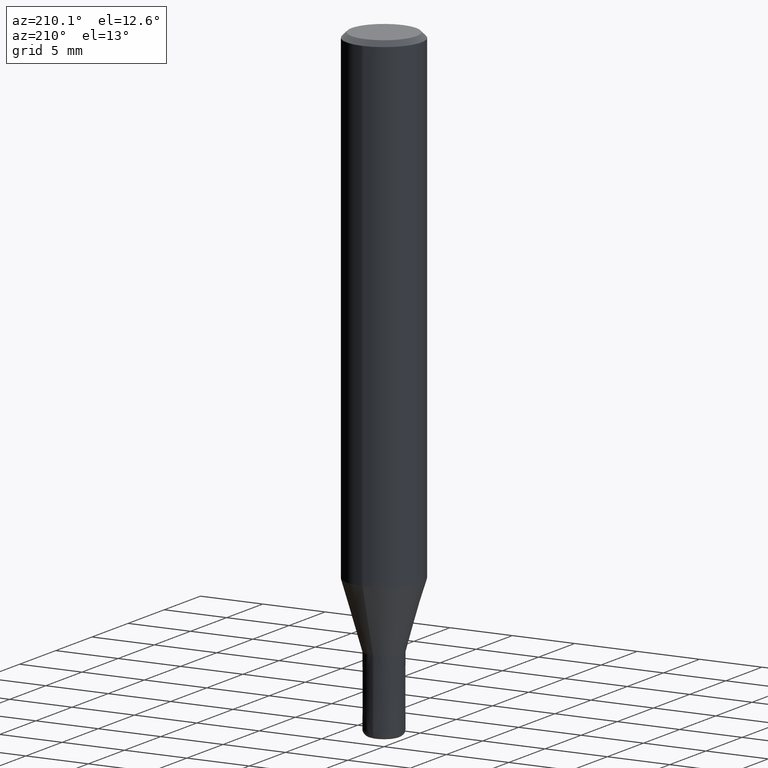
[diagram: clean part render]
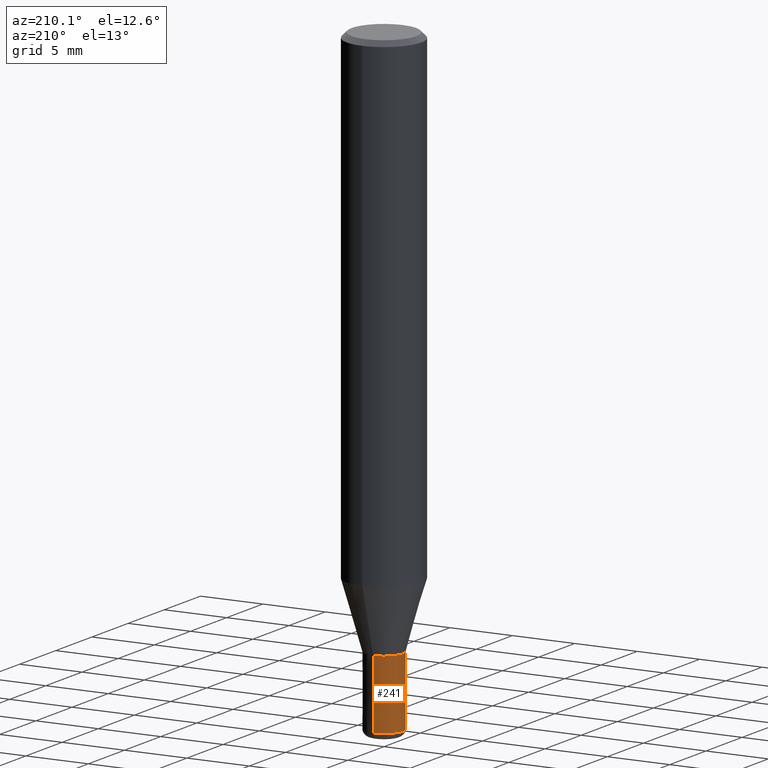
[diagram: same view with one face highlighted and labeled with its STEP entity id]
A machine part, auxiliary view. The second image highlights one B-rep face of the part: STEP entity #241.
In plain terms, the highlighted conical surface has half-angle 0.001 deg.
Its self-contained STEP definition (entity closure, byte-faithful):
#123=VERTEX_POINT('',#311);
#131=EDGE_CURVE('',#165,#123,#321,.T.);
#147=EDGE_CURVE('',#197,#151,#339,.T.);
#151=VERTEX_POINT('',#344);
#165=VERTEX_POINT('',#360);
#167=EDGE_CURVE('',#151,#123,#362,.T.);
#197=VERTEX_POINT('',#398);
#241=ADVANCED_FACE('',(#450),#451,.T.);
#271=EDGE_CURVE('',#165,#197,#482,.T.);
#311=CARTESIAN_POINT('',(0.0,1.5,-49.5));
#321=CIRCLE('',#527,1.5);
#339=CIRCLE('',#553,1.4999);
#344=CARTESIAN_POINT('',(0.0,1.4999,-44.0));
#360=CARTESIAN_POINT('',(1.83690953073357E-016,-1.5,-49.5));
#362=LINE('',#582,#583);
#398=CARTESIAN_POINT('',(1.83678707009818E-016,-1.4999,-44.0));
#450=FACE_OUTER_BOUND('',#682,.T.);
#451=CONICAL_SURFACE('',#683,1.49995,1.81818181798127E-005);
#482=LINE('',#727,#728);
#527=AXIS2_PLACEMENT_3D('',#775,#776,#777);
#553=AXIS2_PLACEMENT_3D('',#802,#803,#804);
#582=CARTESIAN_POINT('',(-1.83684830041587E-016,1.49995,-46.75));
#583=VECTOR('',#839,1.0);
#682=EDGE_LOOP('',(#948,#949,#950,#951));
#683=AXIS2_PLACEMENT_3D('',#952,#953,#954);
#727=CARTESIAN_POINT('',(1.83684830041587E-016,-1.49995,-46.75));
#728=VECTOR('',#984,1.0);
#775=CARTESIAN_POINT('',(0.0,0.0,-49.5));
#776=DIRECTION('',(0.0,0.0,-1.0));
#777=DIRECTION('',(0.0,1.0,0.0));
#802=CARTESIAN_POINT('',(0.0,0.0,-44.0));
#803=DIRECTION('',(0.0,0.0,-1.0));
#804=DIRECTION('',(0.0,1.0,0.0));
#839=DIRECTION('',(-2.22655700658151E-021,1.81818181788109E-005,-0.999999999834711));
#948=ORIENTED_EDGE('',*,*,#167,.T.);
#949=ORIENTED_EDGE('',*,*,#131,.F.);
#950=ORIENTED_EDGE('',*,*,#271,.T.);
#951=ORIENTED_EDGE('',*,*,#147,.T.);
#952=CARTESIAN_POINT('',(0.0,0.0,-46.75));
#953=DIRECTION('',(0.0,-0.0,-1.0));
#954=DIRECTION('',(0.0,1.0,0.0));
#984=DIRECTION('',(-2.22655700658151E-021,1.81818181788109E-005,0.999999999834711));